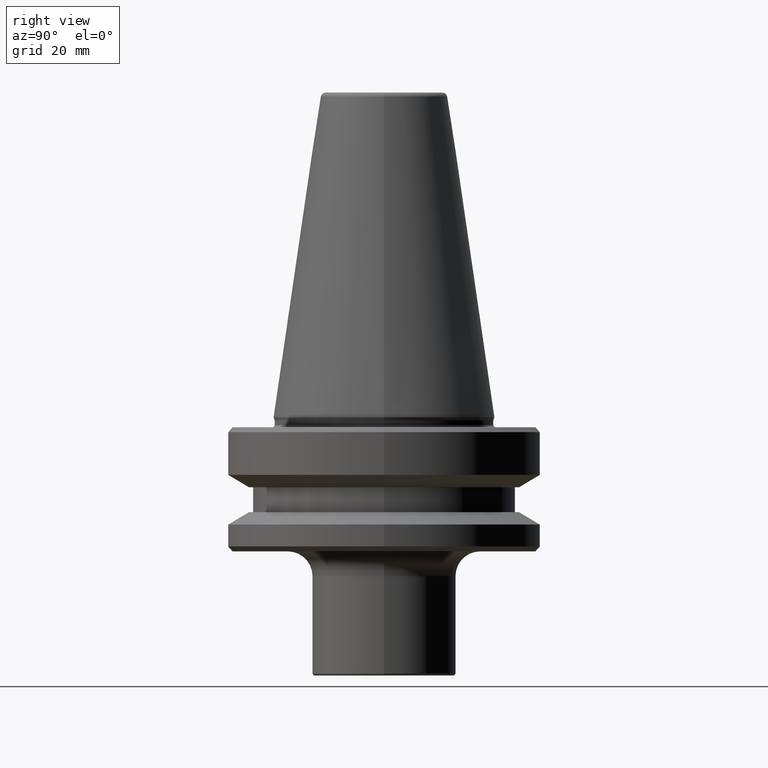
[diagram: clean part render]
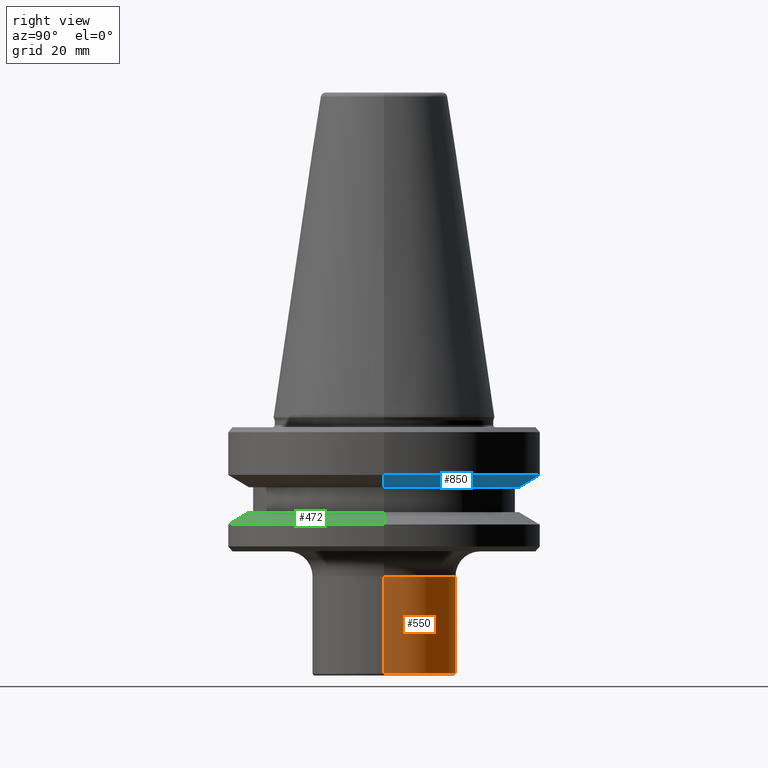
[diagram: same view with three faces highlighted in distinct colors, each labeled with its STEP entity id]
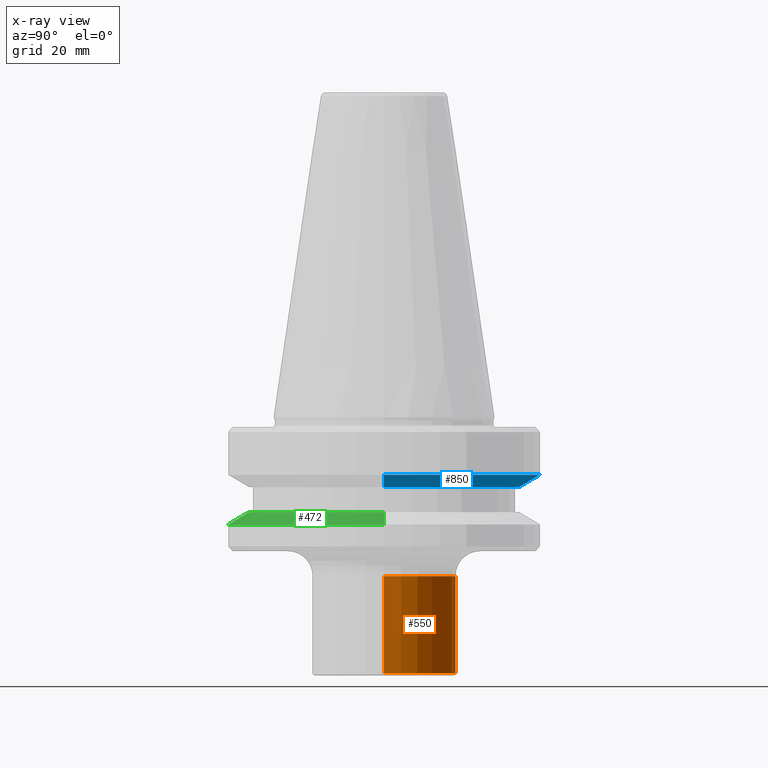
[diagram: x-ray of the same camera — body ghosted, the three highlighted faces saturated]
A machine part, right view with three faces highlighted in distinct colors.
The next image is the same camera in x-ray (body ghosted, the three faces saturated) — at least one of them is partly hidden behind the body in this view.
Their STEP definitions:

[orange] entity #550 — the highlighted cylindrical surface (partial cylindrical patch) has radius 14.5 mm, axis along (-0, -0, 1).
#8 = DIRECTION ( 'NONE',  ( -0.0000000000000000000, -0.0000000000000000000, 1.000000000000000000 ) ) ;
#11 = ORIENTED_EDGE ( 'NONE', *, *, #258, .F. ) ;
#15 = AXIS2_PLACEMENT_3D ( 'NONE', #514, #781, #192 ) ;
#152 = ORIENTED_EDGE ( 'NONE', *, *, #901, .T. ) ;
#157 = ORIENTED_EDGE ( 'NONE', *, *, #865, .T. ) ;
#192 = DIRECTION ( 'NONE',  ( 1.000000000000000000, 0.0000000000000000000, 0.0000000000000000000 ) ) ;
#239 = DIRECTION ( 'NONE',  ( -0.0000000000000000000, -0.0000000000000000000, 1.000000000000000000 ) ) ;
#258 = EDGE_CURVE ( 'NONE', #768, #298, #1003, .T. ) ;
#272 = CARTESIAN_POINT ( 'NONE',  ( 14.50000000000000000, 0.0000000000000000000, -116.9000000000083300 ) ) ;
#284 = CARTESIAN_POINT ( 'NONE',  ( 0.0000000000000000000, 0.0000000000000000000, 6.357346922996331500 ) ) ;
#297 = CARTESIAN_POINT ( 'NONE',  ( -14.50000000000000200, 1.775737858763662400E-015, 6.357346922996331500 ) ) ;
#298 = VERTEX_POINT ( 'NONE', #485 ) ;
#310 = CARTESIAN_POINT ( 'NONE',  ( -14.50000000000000000, 1.775737858763662000E-015, -116.9000000000083300 ) ) ;
#345 = CARTESIAN_POINT ( 'NONE',  ( 14.50000000000000200, 0.0000000000000000000, 6.357346922996331500 ) ) ;
#361 = EDGE_LOOP ( 'NONE', ( #157, #152, #11, #665 ) ) ;
#414 = CARTESIAN_POINT ( 'NONE',  ( 14.50000000000000200, 0.0000000000000000000, -97.40000000000803500 ) ) ;
#455 = VERTEX_POINT ( 'NONE', #310 ) ;
#458 = AXIS2_PLACEMENT_3D ( 'NONE', #967, #239, #999 ) ;
#485 = CARTESIAN_POINT ( 'NONE',  ( -14.50000000000000200, 2.081899558550500300E-015, -97.40000000000803500 ) ) ;
#497 = VECTOR ( 'NONE', #814, 1000.000000000000000 ) ;
#514 = CARTESIAN_POINT ( 'NONE',  ( 0.0000000000000000000, 0.0000000000000000000, -116.9000000000083300 ) ) ;
#527 = LINE ( 'NONE', #297, #497 ) ;
#533 = DIRECTION ( 'NONE',  ( 1.000000000000000000, 0.0000000000000000000, 0.0000000000000000000 ) ) ;
#550 = ADVANCED_FACE ( 'NONE', ( #810 ), #573, .T. ) ;
#564 = VERTEX_POINT ( 'NONE', #272 ) ;
#573 = CYLINDRICAL_SURFACE ( 'NONE', #708, 14.50000000000000200 ) ;
#575 = VECTOR ( 'NONE', #8, 1000.000000000000000 ) ;
#665 = ORIENTED_EDGE ( 'NONE', *, *, #833, .F. ) ;
#679 = DIRECTION ( 'NONE',  ( -0.0000000000000000000, -0.0000000000000000000, 1.000000000000000000 ) ) ;
#708 = AXIS2_PLACEMENT_3D ( 'NONE', #284, #679, #533 ) ;
#768 = VERTEX_POINT ( 'NONE', #414 ) ;
#781 = DIRECTION ( 'NONE',  ( -0.0000000000000000000, -0.0000000000000000000, 1.000000000000000000 ) ) ;
#788 = LINE ( 'NONE', #345, #575 ) ;
#810 = FACE_OUTER_BOUND ( 'NONE', #361, .T. ) ;
#814 = DIRECTION ( 'NONE',  ( -0.0000000000000000000, -0.0000000000000000000, 1.000000000000000000 ) ) ;
#833 = EDGE_CURVE ( 'NONE', #564, #768, #788, .T. ) ;
#865 = EDGE_CURVE ( 'NONE', #564, #455, #963, .T. ) ;
#901 = EDGE_CURVE ( 'NONE', #455, #298, #527, .T. ) ;
#963 = CIRCLE ( 'NONE', #15, 14.50000000000000200 ) ;
#967 = CARTESIAN_POINT ( 'NONE',  ( 0.0000000000000000000, 0.0000000000000000000, -97.40000000000803500 ) ) ;
#999 = DIRECTION ( 'NONE',  ( 1.000000000000000000, 0.0000000000000000000, 0.0000000000000000000 ) ) ;
#1003 = CIRCLE ( 'NONE', #458, 14.50000000000000200 ) ;

[blue] entity #850 — the highlighted conical surface has half-angle 60 deg.
#14 = CARTESIAN_POINT ( 'NONE',  ( 0.0000000000000000000, 0.0000000000000000000, -79.50000000000012800 ) ) ;
#16 = DIRECTION ( 'NONE',  ( -0.0000000000000000000, -0.0000000000000000000, 1.000000000000000000 ) ) ;
#21 = VERTEX_POINT ( 'NONE', #105 ) ;
#97 = ORIENTED_EDGE ( 'NONE', *, *, #161, .T. ) ;
#105 = CARTESIAN_POINT ( 'NONE',  ( -27.16962701892322600, 3.592478546794674900E-015, -79.50000000000012800 ) ) ;
#161 = EDGE_CURVE ( 'NONE', #1008, #21, #632, .T. ) ;
#166 = EDGE_CURVE ( 'NONE', #1011, #873, #884, .T. ) ;
#188 = VECTOR ( 'NONE', #457, 1000.000000000000100 ) ;
#216 = EDGE_LOOP ( 'NONE', ( #97, #1037, #856, #500 ) ) ;
#326 = DIRECTION ( 'NONE',  ( -0.0000000000000000000, -0.0000000000000000000, 1.000000000000000000 ) ) ;
#329 = DIRECTION ( 'NONE',  ( 1.000000000000000000, 0.0000000000000000000, 0.0000000000000000000 ) ) ;
#457 = DIRECTION ( 'NONE',  ( 0.8660254037844383700, 0.0000000000000000000, 0.5000000000000003300 ) ) ;
#499 = CARTESIAN_POINT ( 'NONE',  ( 27.16962701892322600, 0.0000000000000000000, -79.50000000000012800 ) ) ;
#500 = ORIENTED_EDGE ( 'NONE', *, *, #1046, .F. ) ;
#552 = FACE_OUTER_BOUND ( 'NONE', #216, .T. ) ;
#616 = CARTESIAN_POINT ( 'NONE',  ( 0.0000000000000000000, 0.0000000000000000000, -76.99985799368391800 ) ) ;
#627 = EDGE_CURVE ( 'NONE', #21, #873, #760, .T. ) ;
#632 = CIRCLE ( 'NONE', #906, 27.16962701892322600 ) ;
#660 = DIRECTION ( 'NONE',  ( -0.0000000000000000000, -0.0000000000000000000, 1.000000000000000000 ) ) ;
#736 = CONICAL_SURFACE ( 'NONE', #965, 31.50000000000008500, 1.047197551196597400 ) ;
#743 = CARTESIAN_POINT ( 'NONE',  ( -31.50000000000008500, 3.857637417314172900E-015, -76.99985799368391800 ) ) ;
#760 = LINE ( 'NONE', #861, #785 ) ;
#785 = VECTOR ( 'NONE', #950, 1000.000000000000100 ) ;
#792 = AXIS2_PLACEMENT_3D ( 'NONE', #934, #326, #329 ) ;
#850 = ADVANCED_FACE ( 'NONE', ( #552 ), #736, .T. ) ;
#856 = ORIENTED_EDGE ( 'NONE', *, *, #166, .F. ) ;
#861 = CARTESIAN_POINT ( 'NONE',  ( -31.50000000000008500, 3.857637417314172900E-015, -76.99985799368391800 ) ) ;
#873 = VERTEX_POINT ( 'NONE', #743 ) ;
#880 = LINE ( 'NONE', #1026, #188 ) ;
#884 = CIRCLE ( 'NONE', #792, 31.50000000000008500 ) ;
#906 = AXIS2_PLACEMENT_3D ( 'NONE', #14, #660, #1015 ) ;
#934 = CARTESIAN_POINT ( 'NONE',  ( 0.0000000000000000000, 0.0000000000000000000, -76.99985799368391800 ) ) ;
#950 = DIRECTION ( 'NONE',  ( -0.8660254037844383700, 1.060575238724906500E-016, 0.5000000000000003300 ) ) ;
#965 = AXIS2_PLACEMENT_3D ( 'NONE', #616, #16, #987 ) ;
#973 = CARTESIAN_POINT ( 'NONE',  ( 31.50000000000008500, 0.0000000000000000000, -76.99985799368391800 ) ) ;
#987 = DIRECTION ( 'NONE',  ( 1.000000000000000000, 0.0000000000000000000, 0.0000000000000000000 ) ) ;
#1008 = VERTEX_POINT ( 'NONE', #499 ) ;
#1011 = VERTEX_POINT ( 'NONE', #973 ) ;
#1015 = DIRECTION ( 'NONE',  ( 1.000000000000000000, 0.0000000000000000000, 0.0000000000000000000 ) ) ;
#1026 = CARTESIAN_POINT ( 'NONE',  ( 31.50000000000008500, 0.0000000000000000000, -76.99985799368391800 ) ) ;
#1037 = ORIENTED_EDGE ( 'NONE', *, *, #627, .T. ) ;
#1046 = EDGE_CURVE ( 'NONE', #1008, #1011, #880, .T. ) ;

[green] entity #472 — the highlighted conical surface has half-angle 60 deg.
#25 = DIRECTION ( 'NONE',  ( -0.0000000000000000000, -0.0000000000000000000, 1.000000000000000000 ) ) ;
#95 = CIRCLE ( 'NONE', #241, 31.50000000000008500 ) ;
#120 = CARTESIAN_POINT ( 'NONE',  ( 0.0000000000000000000, 0.0000000000000000000, -87.00014200631733300 ) ) ;
#125 = EDGE_CURVE ( 'NONE', #889, #320, #948, .T. ) ;
#128 = EDGE_LOOP ( 'NONE', ( #369, #937, #638, #408 ) ) ;
#200 = CONICAL_SURFACE ( 'NONE', #334, 31.50000000000008500, 1.047197551196587000 ) ;
#227 = VECTOR ( 'NONE', #511, 1000.000000000000000 ) ;
#234 = DIRECTION ( 'NONE',  ( 0.0000000000000000000, 0.0000000000000000000, -1.000000000000000000 ) ) ;
#241 = AXIS2_PLACEMENT_3D ( 'NONE', #352, #484, #259 ) ;
#259 = DIRECTION ( 'NONE',  ( 1.000000000000000000, 0.0000000000000000000, 0.0000000000000000000 ) ) ;
#320 = VERTEX_POINT ( 'NONE', #496 ) ;
#334 = AXIS2_PLACEMENT_3D ( 'NONE', #120, #234, #683 ) ;
#352 = CARTESIAN_POINT ( 'NONE',  ( 0.0000000000000000000, 0.0000000000000000000, -87.00014200631733300 ) ) ;
#365 = CIRCLE ( 'NONE', #908, 27.16962701892256100 ) ;
#369 = ORIENTED_EDGE ( 'NONE', *, *, #125, .F. ) ;
#408 = ORIENTED_EDGE ( 'NONE', *, *, #887, .T. ) ;
#433 = EDGE_CURVE ( 'NONE', #745, #964, #439, .T. ) ;
#439 = LINE ( 'NONE', #834, #227 ) ;
#472 = ADVANCED_FACE ( 'NONE', ( #649 ), #200, .T. ) ;
#484 = DIRECTION ( 'NONE',  ( -0.0000000000000000000, -0.0000000000000000000, 1.000000000000000000 ) ) ;
#488 = DIRECTION ( 'NONE',  ( 0.8660254037844332700, 1.060575238724900300E-016, -0.5000000000000093300 ) ) ;
#496 = CARTESIAN_POINT ( 'NONE',  ( 31.50000000000008500, 0.0000000000000000000, -87.00014200631733300 ) ) ;
#511 = DIRECTION ( 'NONE',  ( -0.8660254037844332700, 0.0000000000000000000, -0.5000000000000093300 ) ) ;
#621 = CARTESIAN_POINT ( 'NONE',  ( -27.16962701892256100, 0.0000000000000000000, -84.50000000000068200 ) ) ;
#638 = ORIENTED_EDGE ( 'NONE', *, *, #433, .T. ) ;
#649 = FACE_OUTER_BOUND ( 'NONE', #128, .T. ) ;
#663 = CARTESIAN_POINT ( 'NONE',  ( -31.50000000000008500, 3.857637417314172900E-015, -87.00014200631733300 ) ) ;
#683 = DIRECTION ( 'NONE',  ( -1.000000000000000000, 0.0000000000000000000, 0.0000000000000000000 ) ) ;
#722 = VECTOR ( 'NONE', #488, 1000.000000000000000 ) ;
#745 = VERTEX_POINT ( 'NONE', #621 ) ;
#772 = DIRECTION ( 'NONE',  ( 1.000000000000000000, 0.0000000000000000000, 0.0000000000000000000 ) ) ;
#830 = CARTESIAN_POINT ( 'NONE',  ( 0.0000000000000000000, 0.0000000000000000000, -84.50000000000068200 ) ) ;
#834 = CARTESIAN_POINT ( 'NONE',  ( -31.50000000000008500, 0.0000000000000000000, -87.00014200631733300 ) ) ;
#844 = EDGE_CURVE ( 'NONE', #745, #889, #365, .T. ) ;
#860 = CARTESIAN_POINT ( 'NONE',  ( 31.50000000000008500, 3.857637417314172900E-015, -87.00014200631733300 ) ) ;
#870 = CARTESIAN_POINT ( 'NONE',  ( 27.16962701892256100, 3.592478546794633900E-015, -84.50000000000068200 ) ) ;
#887 = EDGE_CURVE ( 'NONE', #964, #320, #95, .T. ) ;
#889 = VERTEX_POINT ( 'NONE', #870 ) ;
#908 = AXIS2_PLACEMENT_3D ( 'NONE', #830, #25, #772 ) ;
#937 = ORIENTED_EDGE ( 'NONE', *, *, #844, .F. ) ;
#948 = LINE ( 'NONE', #860, #722 ) ;
#964 = VERTEX_POINT ( 'NONE', #663 ) ;